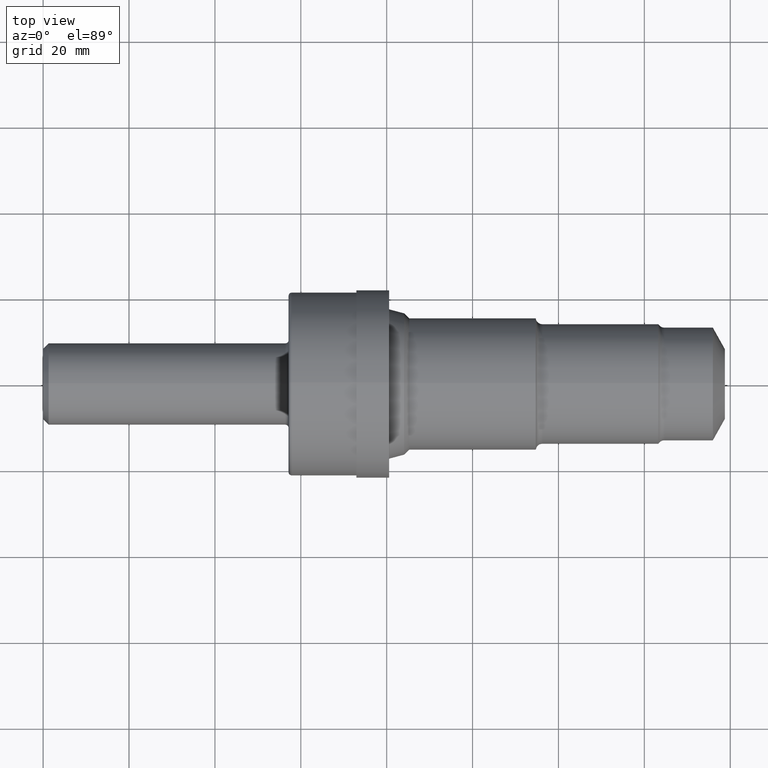
[diagram: clean part render]
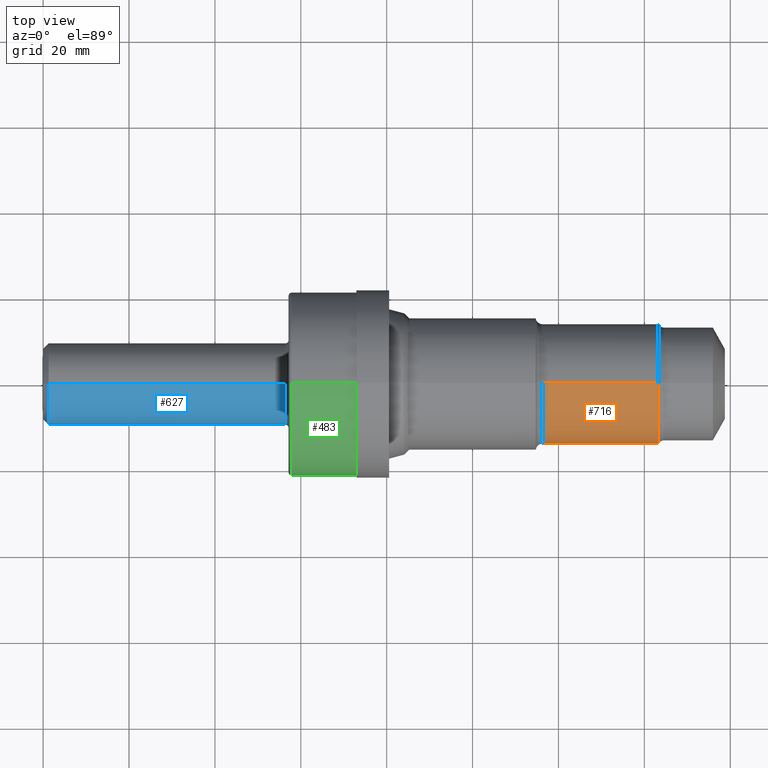
[diagram: same view with three faces highlighted in distinct colors, each labeled with its STEP entity id]
A machine part, top view with three faces highlighted in distinct colors.
Their STEP definitions:

[orange] entity #716 — the highlighted cylindrical surface (partial cylindrical patch) has radius 13.9929 mm, axis along (-1, -0, -0).
#17 = CIRCLE ( 'NONE', #626, 0.5509000000000000563 ) ;
#33 = ORIENTED_EDGE ( 'NONE', *, *, #713, .F. ) ;
#71 = DIRECTION ( 'NONE',  ( -1.000000000000000000, -0.0000000000000000000, -0.0000000000000000000 ) ) ;
#100 = AXIS2_PLACEMENT_3D ( 'NONE', #305, #571, #575 ) ;
#112 = DIRECTION ( 'NONE',  ( -1.000000000000000000, -0.0000000000000000000, -0.0000000000000000000 ) ) ;
#162 = VERTEX_POINT ( 'NONE', #549 ) ;
#172 = FACE_OUTER_BOUND ( 'NONE', #229, .T. ) ;
#229 = EDGE_LOOP ( 'NONE', ( #33, #506, #466, #311 ) ) ;
#241 = EDGE_CURVE ( 'NONE', #277, #289, #17, .T. ) ;
#277 = VERTEX_POINT ( 'NONE', #461 ) ;
#289 = VERTEX_POINT ( 'NONE', #886 ) ;
#305 = CARTESIAN_POINT ( 'NONE',  ( 4.577428332225449203, 0.0000000000000000000, 0.0000000000000000000 ) ) ;
#311 = ORIENTED_EDGE ( 'NONE', *, *, #935, .F. ) ;
#339 = CIRCLE ( 'NONE', #100, 0.5508999999999999453 ) ;
#396 = EDGE_CURVE ( 'NONE', #289, #608, #840, .T. ) ;
#399 = DIRECTION ( 'NONE',  ( -1.000000000000000000, -0.0000000000000000000, -0.0000000000000000000 ) ) ;
#416 = CARTESIAN_POINT ( 'NONE',  ( 0.0000000000000000000, 0.0000000000000000000, 0.0000000000000000000 ) ) ;
#461 = CARTESIAN_POINT ( 'NONE',  ( 5.641000000000000014, 6.746579216502770273E-17, -0.5509000000000001673 ) ) ;
#466 = ORIENTED_EDGE ( 'NONE', *, *, #396, .T. ) ;
#506 = ORIENTED_EDGE ( 'NONE', *, *, #241, .T. ) ;
#520 = CARTESIAN_POINT ( 'NONE',  ( 0.0000000000000000000, 0.0000000000000000000, 0.5508999999999999453 ) ) ;
#549 = CARTESIAN_POINT ( 'NONE',  ( 4.577428332225449203, 7.074784558674260945E-17, -0.5508999999999999453 ) ) ;
#571 = DIRECTION ( 'NONE',  ( -1.000000000000000000, -0.0000000000000000000, -0.0000000000000000000 ) ) ;
#575 = DIRECTION ( 'NONE',  ( 0.0000000000000000000, 0.0000000000000000000, 1.000000000000000000 ) ) ;
#580 = VECTOR ( 'NONE', #112, 39.37007874015748143 ) ;
#608 = VERTEX_POINT ( 'NONE', #659 ) ;
#610 = DIRECTION ( 'NONE',  ( 0.0000000000000000000, 0.0000000000000000000, 1.000000000000000000 ) ) ;
#626 = AXIS2_PLACEMENT_3D ( 'NONE', #684, #399, #841 ) ;
#634 = VECTOR ( 'NONE', #877, 39.37007874015748143 ) ;
#659 = CARTESIAN_POINT ( 'NONE',  ( 4.577428332225449203, 0.0000000000000000000, 0.5508999999999999453 ) ) ;
#684 = CARTESIAN_POINT ( 'NONE',  ( 5.641000000000000014, 0.0000000000000000000, 0.0000000000000000000 ) ) ;
#713 = EDGE_CURVE ( 'NONE', #277, #162, #949, .T. ) ;
#716 = ADVANCED_FACE ( 'NONE', ( #172 ), #742, .T. ) ;
#742 = CYLINDRICAL_SURFACE ( 'NONE', #901, 0.5508999999999999453 ) ;
#840 = LINE ( 'NONE', #520, #634 ) ;
#841 = DIRECTION ( 'NONE',  ( 0.0000000000000000000, 0.0000000000000000000, 1.000000000000000000 ) ) ;
#868 = CARTESIAN_POINT ( 'NONE',  ( 0.0000000000000000000, 6.746579216502769040E-17, -0.5508999999999999453 ) ) ;
#877 = DIRECTION ( 'NONE',  ( -1.000000000000000000, -0.0000000000000000000, -0.0000000000000000000 ) ) ;
#886 = CARTESIAN_POINT ( 'NONE',  ( 5.641000000000000014, 0.0000000000000000000, 0.5509000000000000563 ) ) ;
#901 = AXIS2_PLACEMENT_3D ( 'NONE', #416, #71, #610 ) ;
#935 = EDGE_CURVE ( 'NONE', #162, #608, #339, .T. ) ;
#949 = LINE ( 'NONE', #868, #580 ) ;

[blue] entity #627 — the highlighted cylindrical surface (partial cylindrical patch) has radius 9.5212 mm, axis along (-1, -0, -0).
#39 = CYLINDRICAL_SURFACE ( 'NONE', #450, 0.3748500000000002386 ) ;
#56 = CARTESIAN_POINT ( 'NONE',  ( 2.220000000000000195, 0.0000000000000000000, 0.0000000000000000000 ) ) ;
#58 = ORIENTED_EDGE ( 'NONE', *, *, #853, .T. ) ;
#59 = VECTOR ( 'NONE', #387, 39.37007874015748143 ) ;
#67 = FACE_OUTER_BOUND ( 'NONE', #369, .T. ) ;
#146 = VERTEX_POINT ( 'NONE', #905 ) ;
#159 = AXIS2_PLACEMENT_3D ( 'NONE', #629, #699, #857 ) ;
#227 = ORIENTED_EDGE ( 'NONE', *, *, #729, .F. ) ;
#291 = DIRECTION ( 'NONE',  ( -1.000000000000000000, -0.0000000000000000000, -0.0000000000000000000 ) ) ;
#301 = DIRECTION ( 'NONE',  ( 0.0000000000000000000, 0.0000000000000000000, 1.000000000000000000 ) ) ;
#369 = EDGE_LOOP ( 'NONE', ( #832, #381, #58, #227 ) ) ;
#374 = CIRCLE ( 'NONE', #159, 0.3748500000000000165 ) ;
#376 = DIRECTION ( 'NONE',  ( -1.000000000000000000, -0.0000000000000000000, -0.0000000000000000000 ) ) ;
#381 = ORIENTED_EDGE ( 'NONE', *, *, #538, .T. ) ;
#387 = DIRECTION ( 'NONE',  ( -1.000000000000000000, -0.0000000000000000000, -0.0000000000000000000 ) ) ;
#436 = CARTESIAN_POINT ( 'NONE',  ( 0.0000000000000000000, 0.0000000000000000000, 0.0000000000000000000 ) ) ;
#450 = AXIS2_PLACEMENT_3D ( 'NONE', #436, #513, #809 ) ;
#513 = DIRECTION ( 'NONE',  ( -1.000000000000000000, -0.0000000000000000000, -0.0000000000000000000 ) ) ;
#523 = LINE ( 'NONE', #762, #895 ) ;
#538 = EDGE_CURVE ( 'NONE', #563, #731, #867, .T. ) ;
#544 = AXIS2_PLACEMENT_3D ( 'NONE', #56, #376, #301 ) ;
#563 = VERTEX_POINT ( 'NONE', #732 ) ;
#590 = LINE ( 'NONE', #752, #59 ) ;
#627 = ADVANCED_FACE ( 'NONE', ( #67 ), #39, .T. ) ;
#629 = CARTESIAN_POINT ( 'NONE',  ( 0.05000000000000000278, 0.0000000000000000000, 0.0000000000000000000 ) ) ;
#699 = DIRECTION ( 'NONE',  ( -1.000000000000000000, -0.0000000000000000000, -0.0000000000000000000 ) ) ;
#729 = EDGE_CURVE ( 'NONE', #146, #797, #374, .T. ) ;
#731 = VERTEX_POINT ( 'NONE', #788 ) ;
#732 = CARTESIAN_POINT ( 'NONE',  ( 2.220000000000000195, 4.590588526603859294E-17, -0.3748500000000005161 ) ) ;
#752 = CARTESIAN_POINT ( 'NONE',  ( 0.0000000000000000000, 0.0000000000000000000, 0.3748500000000002386 ) ) ;
#762 = CARTESIAN_POINT ( 'NONE',  ( 0.0000000000000000000, 4.590588526603856213E-17, -0.3748500000000002386 ) ) ;
#788 = CARTESIAN_POINT ( 'NONE',  ( 2.220000000000000195, 0.0000000000000000000, 0.3748500000000005161 ) ) ;
#797 = VERTEX_POINT ( 'NONE', #801 ) ;
#801 = CARTESIAN_POINT ( 'NONE',  ( 0.05000000000000000278, 4.590588526603853748E-17, 0.3748500000000000165 ) ) ;
#809 = DIRECTION ( 'NONE',  ( 0.0000000000000000000, 0.0000000000000000000, 1.000000000000000000 ) ) ;
#832 = ORIENTED_EDGE ( 'NONE', *, *, #944, .F. ) ;
#853 = EDGE_CURVE ( 'NONE', #731, #797, #590, .T. ) ;
#857 = DIRECTION ( 'NONE',  ( 0.0000000000000000000, 0.0000000000000000000, 1.000000000000000000 ) ) ;
#867 = CIRCLE ( 'NONE', #544, 0.3748500000000005161 ) ;
#895 = VECTOR ( 'NONE', #291, 39.37007874015748143 ) ;
#905 = CARTESIAN_POINT ( 'NONE',  ( 0.05000000000000000278, 0.0000000000000000000, -0.3748500000000000165 ) ) ;
#944 = EDGE_CURVE ( 'NONE', #563, #146, #523, .T. ) ;

[green] entity #483 — the highlighted cylindrical surface (partial cylindrical patch) has radius 21.3995 mm, axis along (-1, -0, -0).
#10 = AXIS2_PLACEMENT_3D ( 'NONE', #510, #823, #736 ) ;
#95 = DIRECTION ( 'NONE',  ( -1.000000000000000000, -0.0000000000000000000, -0.0000000000000000000 ) ) ;
#129 = CARTESIAN_POINT ( 'NONE',  ( 0.0000000000000000000, 1.031764928281644949E-16, -0.8424999999999999156 ) ) ;
#135 = LINE ( 'NONE', #220, #703 ) ;
#165 = CARTESIAN_POINT ( 'NONE',  ( 2.872000000000000330, 0.0000000000000000000, 0.0000000000000000000 ) ) ;
#220 = CARTESIAN_POINT ( 'NONE',  ( 0.0000000000000000000, 0.0000000000000000000, 0.8424999999999999156 ) ) ;
#274 = FACE_OUTER_BOUND ( 'NONE', #420, .T. ) ;
#304 = CARTESIAN_POINT ( 'NONE',  ( 2.872000000000000330, 0.0000000000000000000, 0.8424999999999999156 ) ) ;
#361 = DIRECTION ( 'NONE',  ( 0.0000000000000000000, 0.0000000000000000000, 1.000000000000000000 ) ) ;
#392 = VERTEX_POINT ( 'NONE', #885 ) ;
#398 = AXIS2_PLACEMENT_3D ( 'NONE', #165, #670, #361 ) ;
#420 = EDGE_LOOP ( 'NONE', ( #814, #808, #565, #647 ) ) ;
#427 = CIRCLE ( 'NONE', #398, 0.8424999999999999156 ) ;
#430 = LINE ( 'NONE', #129, #620 ) ;
#483 = ADVANCED_FACE ( 'NONE', ( #274 ), #887, .T. ) ;
#486 = DIRECTION ( 'NONE',  ( -1.000000000000000000, -0.0000000000000000000, -0.0000000000000000000 ) ) ;
#487 = EDGE_CURVE ( 'NONE', #635, #792, #135, .T. ) ;
#510 = CARTESIAN_POINT ( 'NONE',  ( 0.0000000000000000000, 0.0000000000000000000, 0.0000000000000000000 ) ) ;
#554 = DIRECTION ( 'NONE',  ( 0.0000000000000000000, 0.0000000000000000000, 1.000000000000000000 ) ) ;
#560 = CARTESIAN_POINT ( 'NONE',  ( 2.279999999999999805, 0.0000000000000000000, 0.8424999999999999156 ) ) ;
#565 = ORIENTED_EDGE ( 'NONE', *, *, #487, .T. ) ;
#605 = DIRECTION ( 'NONE',  ( -1.000000000000000000, -0.0000000000000000000, -0.0000000000000000000 ) ) ;
#616 = CARTESIAN_POINT ( 'NONE',  ( 2.279999999999999805, 0.0000000000000000000, 0.0000000000000000000 ) ) ;
#620 = VECTOR ( 'NONE', #486, 39.37007874015748143 ) ;
#635 = VERTEX_POINT ( 'NONE', #304 ) ;
#637 = EDGE_CURVE ( 'NONE', #392, #818, #430, .T. ) ;
#647 = ORIENTED_EDGE ( 'NONE', *, *, #799, .F. ) ;
#669 = CIRCLE ( 'NONE', #745, 0.8424999999999999156 ) ;
#670 = DIRECTION ( 'NONE',  ( -1.000000000000000000, -0.0000000000000000000, -0.0000000000000000000 ) ) ;
#703 = VECTOR ( 'NONE', #95, 39.37007874015748143 ) ;
#736 = DIRECTION ( 'NONE',  ( 0.0000000000000000000, 0.0000000000000000000, 1.000000000000000000 ) ) ;
#745 = AXIS2_PLACEMENT_3D ( 'NONE', #616, #605, #554 ) ;
#792 = VERTEX_POINT ( 'NONE', #560 ) ;
#799 = EDGE_CURVE ( 'NONE', #818, #792, #669, .T. ) ;
#808 = ORIENTED_EDGE ( 'NONE', *, *, #856, .T. ) ;
#814 = ORIENTED_EDGE ( 'NONE', *, *, #637, .F. ) ;
#818 = VERTEX_POINT ( 'NONE', #942 ) ;
#823 = DIRECTION ( 'NONE',  ( -1.000000000000000000, -0.0000000000000000000, -0.0000000000000000000 ) ) ;
#856 = EDGE_CURVE ( 'NONE', #392, #635, #427, .T. ) ;
#885 = CARTESIAN_POINT ( 'NONE',  ( 2.872000000000000330, 1.031764928281644949E-16, -0.8424999999999999156 ) ) ;
#887 = CYLINDRICAL_SURFACE ( 'NONE', #10, 0.8424999999999999156 ) ;
#942 = CARTESIAN_POINT ( 'NONE',  ( 2.279999999999999805, 1.031764928281644949E-16, -0.8424999999999999156 ) ) ;